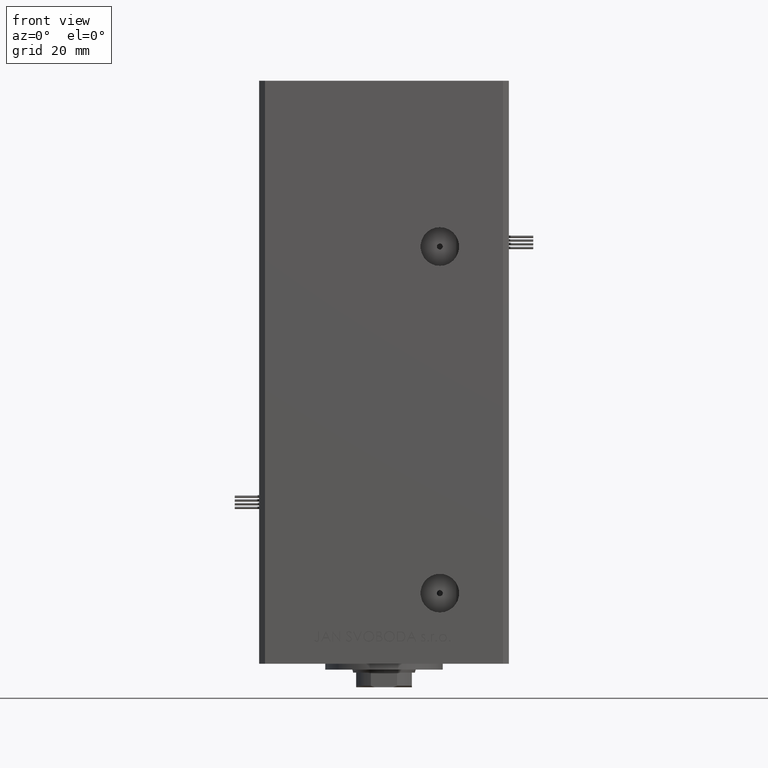
[diagram: clean part render]
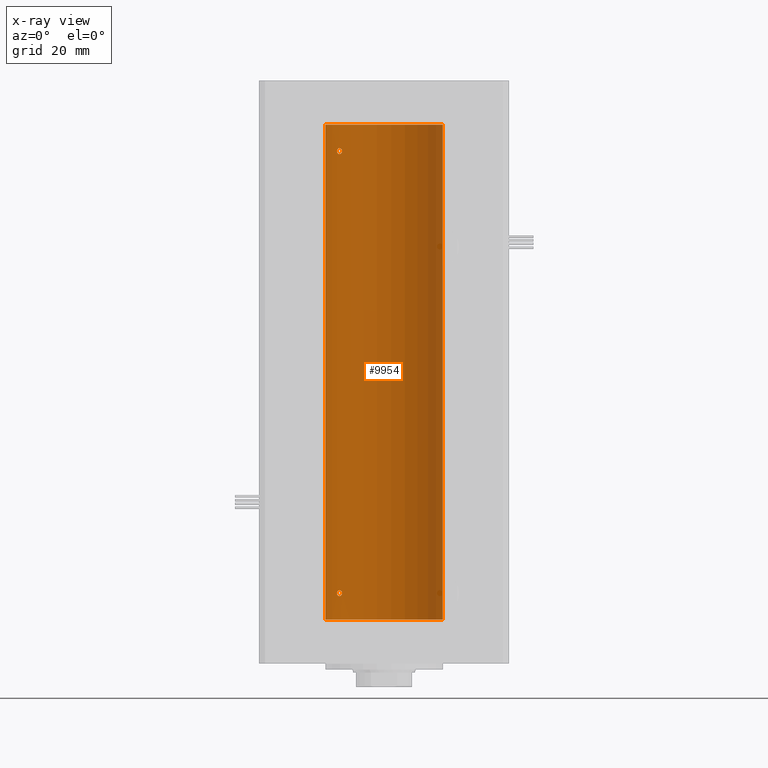
[diagram: x-ray — body ghosted, one internal face saturated and labeled with its STEP entity id]
A machine part, front view, then the same camera in x-ray: the body is ghosted and one INTERNAL B-rep face — a face not visible from any outside direction — is saturated and labeled: STEP entity #9954.
In plain terms, the highlighted cylindrical surface (partial cylindrical patch) has radius 20 mm, axis along (-0, -0, -1).
Its self-contained STEP definition (entity closure, byte-faithful):
#86 = CARTESIAN_POINT ( 'NONE',  ( -14.43642497935765512, 13.84184969151371902, 158.9420533359229353 ) ) ;
#486 = ORIENTED_EDGE ( 'NONE', *, *, #17940, .F. ) ;
#711 = CARTESIAN_POINT ( 'NONE',  ( 20.00000000000000000, 2.449293598294706513E-15, 0.000000000000000000 ) ) ;
#980 = DIRECTION ( 'NONE',  ( -0.000000000000000000, -0.000000000000000000, -1.000000000000000000 ) ) ;
#1031 = CARTESIAN_POINT ( 'NONE',  ( -15.37869370082499287, 12.78737709343838880, 160.4843784334833003 ) ) ;
#1034 = DIRECTION ( 'NONE',  ( 1.000000000000000000, 0.000000000000000000, 0.000000000000000000 ) ) ;
#1082 = B_SPLINE_CURVE_WITH_KNOTS ( 'NONE', 3,
 ( #45273, #12504, #28768, #8519, #24769, #25028, #38584, #33535, #9031, #49526, #25565, #25822, #1031, #18081, #21300, #50053, #29540, #26086, #21557, #46064 ),
 .UNSPECIFIED., .F., .F.,
 ( 4, 2, 2, 2, 2, 2, 2, 2, 2, 4 ),
 ( 0.003644921977557289642, 0.004100339128177102332, 0.004328047703487008027, 0.004555756278796913722, 0.005011173429416777153, 0.005466590580036640584, 0.005922007730656504015, 0.006377424881276367447, 0.006832842031896230010, 0.007288259182516093442 ),
 .UNSPECIFIED. ) ;
#1751 = VERTEX_POINT ( 'NONE', #2927 ) ;
#1999 = EDGE_CURVE ( 'NONE', #51207, #1751, #34315, .T. ) ;
#2090 = CARTESIAN_POINT ( 'NONE',  ( 0.000000000000000000, 0.000000000000000000, 168.5000000000000000 ) ) ;
#2643 = CARTESIAN_POINT ( 'NONE',  ( -14.28285685708539177, 14.00000000000031442, 8.999999999999852562 ) ) ;
#2694 = CARTESIAN_POINT ( 'NONE',  ( -14.31871019372463572, 13.96358505023714969, 8.697478539577891965 ) ) ;
#2722 = VERTEX_POINT ( 'NONE', #28767 ) ;
#2927 = CARTESIAN_POINT ( 'NONE',  ( -20.00000000000000000, 0.000000000000000000, 0.000000000000000000 ) ) ;
#3141 = CARTESIAN_POINT ( 'NONE',  ( -16.00000000000000711, 11.99999999999999112, 9.000000000000001776 ) ) ;
#3228 = CARTESIAN_POINT ( 'NONE',  ( -15.37869471769013430, 12.79018928545118072, 7.995165913711802297 ) ) ;
#3665 = CARTESIAN_POINT ( 'NONE',  ( -15.28000793038420468, 12.90520882930643687, 10.00215022853123159 ) ) ;
#3828 = CARTESIAN_POINT ( 'NONE',  ( -14.31871019372461618, 13.96358505023716567, 159.1974785395779293 ) ) ;
#4033 = CARTESIAN_POINT ( 'NONE',  ( -14.28285685708539177, 14.00000000000031442, 8.999999999999852562 ) ) ;
#4134 = EDGE_CURVE ( 'NONE', #2722, #36157, #48498, .T. ) ;
#6624 = CYLINDRICAL_SURFACE ( 'NONE', #23786, 20.00000000000000000 ) ;
#6690 = CARTESIAN_POINT ( 'NONE',  ( -14.98166541227930360, 13.25033217142394726, 8.024769614914273319 ) ) ;
#7047 = EDGE_LOOP ( 'NONE', ( #48718, #22274, #17550, #43979 ) ) ;
#7662 = CARTESIAN_POINT ( 'NONE',  ( -16.00000000000001066, 11.99999999999999467, 9.154240719993492092 ) ) ;
#8014 = CARTESIAN_POINT ( 'NONE',  ( -14.56006338825496016, 13.71162570780883705, 9.705357955363311362 ) ) ;
#8519 = CARTESIAN_POINT ( 'NONE',  ( -14.40763032799401877, 13.87162499441318886, 159.9952174752552878 ) ) ;
#9031 = CARTESIAN_POINT ( 'NONE',  ( -14.78630942130979697, 13.46798002156743301, 160.3914152795839811 ) ) ;
#9312 = DIRECTION ( 'NONE',  ( -0.000000000000000000, 0.000000000000000000, 1.000000000000000000 ) ) ;
#9809 = DIRECTION ( 'NONE',  ( -0.000000000000000000, -0.000000000000000000, -1.000000000000000000 ) ) ;
#9954 = ADVANCED_FACE ( 'NONE', ( #50585, #14096, #46605 ), #6624, .F. ) ;
#10812 = VECTOR ( 'NONE', #980, 1000.000000000000000 ) ;
#11633 = CIRCLE ( 'NONE', #32042, 20.00000000000000000 ) ;
#11661 = CARTESIAN_POINT ( 'NONE',  ( -15.08229700616152513, 13.13572892147764648, 9.997430752714780766 ) ) ;
#11905 = B_SPLINE_CURVE_WITH_KNOTS ( 'NONE', 3,
 ( #36600, #48588, #20353, #12084, #40331, #24871, #28339, #20610, #29122, #20088, #24340, #41130, #86, #3828, #37115, #16348 ),
 .UNSPECIFIED., .F., .F.,
 ( 4, 2, 2, 2, 2, 2, 2, 4 ),
 ( 0.000000000000000000, 0.0004556152471946793114, 0.0009112304943893586228, 0.001822460988778669107, 0.002278076235973324620, 0.002733691483167979483, 0.003189306730362634346, 0.003644921977557289642 ),
 .UNSPECIFIED. ) ;
#12022 = CARTESIAN_POINT ( 'NONE',  ( -14.28285685708538111, 14.00000000000032685, 159.4999999999998579 ) ) ;
#12084 = CARTESIAN_POINT ( 'NONE',  ( -15.87710824431565904, 12.16238752415382507, 158.9349218073222403 ) ) ;
#12145 = CARTESIAN_POINT ( 'NONE',  ( -20.00000000000000000, 0.000000000000000000, 168.5000000000000000 ) ) ;
#12504 = CARTESIAN_POINT ( 'NONE',  ( -14.28285685708573105, 14.00000000000002487, 159.6525126096658767 ) ) ;
#13007 = B_SPLINE_CURVE_WITH_KNOTS ( 'NONE', 3,
 ( #50921, #47975, #31462, #43205, #47710, #43726, #3228, #27217, #6690, #43470, #39197, #43992, #35722, #2694, #35180, #18949 ),
 .UNSPECIFIED., .F., .F.,
 ( 4, 2, 2, 2, 2, 2, 2, 4 ),
 ( 1.734723475976807094E-18, 0.0004556152471946627231, 0.0009112304943893237115, 0.001822460988778648290, 0.002278076235973310742, 0.002733691483167973411, 0.003189306730362636080, 0.003644921977557298749 ),
 .UNSPECIFIED. ) ;
#13283 = VECTOR ( 'NONE', #9809, 1000.000000000000000 ) ;
#14096 = FACE_BOUND ( 'NONE', #41762, .T. ) ;
#16348 = CARTESIAN_POINT ( 'NONE',  ( -14.28285685708538111, 14.00000000000032685, 159.4999999999998579 ) ) ;
#16810 = CARTESIAN_POINT ( 'NONE',  ( -14.40763032799402055, 13.87162499441318531, 9.495217475255241624 ) ) ;
#17550 = ORIENTED_EDGE ( 'NONE', *, *, #1999, .T. ) ;
#17940 = EDGE_CURVE ( 'NONE', #50271, #38722, #11905, .T. ) ;
#18081 = CARTESIAN_POINT ( 'NONE',  ( -15.56338254739985949, 12.56194079578774847, 160.4068150496692908 ) ) ;
#18254 = EDGE_CURVE ( 'NONE', #51150, #26866, #20112, .T. ) ;
#18949 = CARTESIAN_POINT ( 'NONE',  ( -14.28285685708539177, 14.00000000000031442, 8.999999999999852562 ) ) ;
#19270 = EDGE_CURVE ( 'NONE', #26866, #51150, #13007, .T. ) ;
#19664 = CARTESIAN_POINT ( 'NONE',  ( -15.80861854366321495, 12.25167421322530714, 9.676052991901700651 ) ) ;
#20088 = CARTESIAN_POINT ( 'NONE',  ( -14.78531327857342781, 13.46907986586309747, 158.6090990069114923 ) ) ;
#20112 = B_SPLINE_CURVE_WITH_KNOTS ( 'NONE', 3,
 ( #4033, #41063, #37048, #16810, #36274, #32264, #8014, #28279, #44523, #52406, #11661, #3665, #47363, #43385, #47091, #19664, #31641, #35363, #7662, #3141 ),
 .UNSPECIFIED., .F., .F.,
 ( 4, 2, 2, 2, 2, 2, 2, 2, 2, 4 ),
 ( 0.003644921977557298749, 0.004100339128177154374, 0.004328047703487082620, 0.004555756278797009999, 0.005011173429416865624, 0.005466590580036722116, 0.005922007730656577741, 0.006377424881276433366, 0.006832842031896288991, 0.007288259182516144616 ),
 .UNSPECIFIED. ) ;
#20353 = CARTESIAN_POINT ( 'NONE',  ( -15.97265980134107366, 12.03662641108512332, 159.1953373148639059 ) ) ;
#20610 = CARTESIAN_POINT ( 'NONE',  ( -15.08054978948642955, 13.13774395934156658, 158.5027765441529937 ) ) ;
#21300 = CARTESIAN_POINT ( 'NONE',  ( -15.65267653428112382, 12.45028749062557161, 160.3454911519634720 ) ) ;
#21557 = CARTESIAN_POINT ( 'NONE',  ( -15.99999999999999645, 12.00000000000001421, 159.6542407199935667 ) ) ;
#21829 = CARTESIAN_POINT ( 'NONE',  ( -16.00000000000000711, 11.99999999999999112, 9.000000000000001776 ) ) ;
#22274 = ORIENTED_EDGE ( 'NONE', *, *, #26755, .T. ) ;
#23786 = AXIS2_PLACEMENT_3D ( 'NONE', #2090, #51110, #47378 ) ;
#24340 = CARTESIAN_POINT ( 'NONE',  ( -14.69070843596622744, 13.57200975233015683, 158.6702647380768099 ) ) ;
#24769 = CARTESIAN_POINT ( 'NONE',  ( -14.44276720520014123, 13.83508275448404135, 160.0540486626502741 ) ) ;
#24871 = CARTESIAN_POINT ( 'NONE',  ( -15.57359523075762198, 12.55100654799543314, 158.5686142754107379 ) ) ;
#25028 = CARTESIAN_POINT ( 'NONE',  ( -14.51882058315760027, 13.75524947942078136, 160.1587346592185668 ) ) ;
#25565 = CARTESIAN_POINT ( 'NONE',  ( -15.08229700616151625, 13.13572892147764470, 160.4974307527147630 ) ) ;
#25822 = CARTESIAN_POINT ( 'NONE',  ( -15.28000793038419403, 12.90520882930644042, 160.5021502285312351 ) ) ;
#26086 = CARTESIAN_POINT ( 'NONE',  ( -15.97258576326347779, 12.03672672663915044, 159.8051374092137564 ) ) ;
#26755 = EDGE_CURVE ( 'NONE', #2722, #51207, #11633, .T. ) ;
#26866 = VERTEX_POINT ( 'NONE', #21829 ) ;
#27217 = CARTESIAN_POINT ( 'NONE',  ( -15.08054978948645264, 13.13774395934155059, 8.002776544152997218 ) ) ;
#28279 = CARTESIAN_POINT ( 'NONE',  ( -14.69171503997127992, 13.57092520311231176, 9.830547039779304441 ) ) ;
#28339 = CARTESIAN_POINT ( 'NONE',  ( -15.37869471769012009, 12.79018928545119849, 158.4951659137117588 ) ) ;
#28767 = CARTESIAN_POINT ( 'NONE',  ( 20.00000000000000000, 2.449293598294706513E-15, 168.5000000000000000 ) ) ;
#28768 = CARTESIAN_POINT ( 'NONE',  ( -14.31936354392034971, 13.96291496472316140, 159.8044284570273703 ) ) ;
#29122 = CARTESIAN_POINT ( 'NONE',  ( -14.98166541227928583, 13.25033217142395792, 158.5247696149142485 ) ) ;
#29540 = CARTESIAN_POINT ( 'NONE',  ( -15.87665094074984573, 12.16298652314402240, 160.0660500660139860 ) ) ;
#31462 = CARTESIAN_POINT ( 'NONE',  ( -15.97265980134108787, 12.03662641108510556, 8.695337314863897049 ) ) ;
#31641 = CARTESIAN_POINT ( 'NONE',  ( -15.87665094074984928, 12.16298652314401707, 9.566050066014016195 ) ) ;
#32042 = AXIS2_PLACEMENT_3D ( 'NONE', #37541, #32294, #1034 ) ;
#32264 = CARTESIAN_POINT ( 'NONE',  ( -14.51882058315761270, 13.75524947942076892, 9.658734659218604079 ) ) ;
#32294 = DIRECTION ( 'NONE',  ( -0.000000000000000000, 0.000000000000000000, 1.000000000000000000 ) ) ;
#32359 = EDGE_LOOP ( 'NONE', ( #486, #46233 ) ) ;
#33535 = CARTESIAN_POINT ( 'NONE',  ( -14.69171503997127459, 13.57092520311232065, 160.3305470397793044 ) ) ;
#33542 = CARTESIAN_POINT ( 'NONE',  ( 0.000000000000000000, 0.000000000000000000, 0.000000000000000000 ) ) ;
#34315 = LINE ( 'NONE', #39100, #13283 ) ;
#35180 = CARTESIAN_POINT ( 'NONE',  ( -14.28285685708577191, 13.99999999999997868, 8.847421050659347586 ) ) ;
#35363 = CARTESIAN_POINT ( 'NONE',  ( -15.97258576326347779, 12.03672672663913268, 9.305137409213726229 ) ) ;
#35722 = CARTESIAN_POINT ( 'NONE',  ( -14.43642497935767111, 13.84184969151370304, 8.442053335922924617 ) ) ;
#36157 = VERTEX_POINT ( 'NONE', #711 ) ;
#36274 = CARTESIAN_POINT ( 'NONE',  ( -14.44276720520015367, 13.83508275448402713, 9.554048662650275858 ) ) ;
#36600 = CARTESIAN_POINT ( 'NONE',  ( -15.99999999999999645, 12.00000000000000711, 159.5000000000000000 ) ) ;
#37048 = CARTESIAN_POINT ( 'NONE',  ( -14.31936354392036215, 13.96291496472314897, 9.304428457027322352 ) ) ;
#37115 = CARTESIAN_POINT ( 'NONE',  ( -14.28285685708575770, 14.00000000000000355, 159.3474210506593920 ) ) ;
#37541 = CARTESIAN_POINT ( 'NONE',  ( 0.000000000000000000, 0.000000000000000000, 168.5000000000000000 ) ) ;
#38015 = CARTESIAN_POINT ( 'NONE',  ( 20.00000000000000000, 2.449293598294706513E-15, 168.5000000000000000 ) ) ;
#38584 = CARTESIAN_POINT ( 'NONE',  ( -14.56006338825494950, 13.71162570780885304, 160.2053579553632972 ) ) ;
#38722 = VERTEX_POINT ( 'NONE', #12022 ) ;
#39100 = CARTESIAN_POINT ( 'NONE',  ( -20.00000000000000000, 0.000000000000000000, 168.5000000000000000 ) ) ;
#39197 = CARTESIAN_POINT ( 'NONE',  ( -14.69070843596624165, 13.57200975233013374, 8.170264738076779665 ) ) ;
#40331 = CARTESIAN_POINT ( 'NONE',  ( -15.80909732170550441, 12.25106527276996360, 158.8244517809014269 ) ) ;
#41063 = CARTESIAN_POINT ( 'NONE',  ( -14.28285685708574348, 14.00000000000002132, 9.152512609665839349 ) ) ;
#41130 = CARTESIAN_POINT ( 'NONE',  ( -14.51590294503183109, 13.75881262167379404, 158.8367812074224332 ) ) ;
#41762 = EDGE_LOOP ( 'NONE', ( #42553, #41804 ) ) ;
#41804 = ORIENTED_EDGE ( 'NONE', *, *, #18254, .F. ) ;
#42553 = ORIENTED_EDGE ( 'NONE', *, *, #19270, .F. ) ;
#43205 = CARTESIAN_POINT ( 'NONE',  ( -15.87710824431567325, 12.16238752415380553, 8.434921807322277587 ) ) ;
#43385 = CARTESIAN_POINT ( 'NONE',  ( -15.56338254739986127, 12.56194079578773959, 9.906815049669285500 ) ) ;
#43470 = CARTESIAN_POINT ( 'NONE',  ( -14.78531327857344202, 13.46907986586307970, 8.109099006911455021 ) ) ;
#43726 = CARTESIAN_POINT ( 'NONE',  ( -15.57359523075763796, 12.55100654799542070, 8.068614275410753933 ) ) ;
#43949 = AXIS2_PLACEMENT_3D ( 'NONE', #33542, #9312, #49788 ) ;
#43979 = ORIENTED_EDGE ( 'NONE', *, *, #49258, .F. ) ;
#43992 = CARTESIAN_POINT ( 'NONE',  ( -14.51590294503184886, 13.75881262167378161, 8.336781207422362172 ) ) ;
#44296 = EDGE_CURVE ( 'NONE', #38722, #50271, #1082, .T. ) ;
#44523 = CARTESIAN_POINT ( 'NONE',  ( -14.78630942130980408, 13.46798002156742768, 9.891415279583981146 ) ) ;
#45273 = CARTESIAN_POINT ( 'NONE',  ( -14.28285685708538111, 14.00000000000032685, 159.4999999999998579 ) ) ;
#46064 = CARTESIAN_POINT ( 'NONE',  ( -15.99999999999999645, 12.00000000000000711, 159.5000000000000000 ) ) ;
#46233 = ORIENTED_EDGE ( 'NONE', *, *, #44296, .F. ) ;
#46605 = FACE_BOUND ( 'NONE', #32359, .T. ) ;
#47091 = CARTESIAN_POINT ( 'NONE',  ( -15.65267653428114158, 12.45028749062555207, 9.845491151963431165 ) ) ;
#47363 = CARTESIAN_POINT ( 'NONE',  ( -15.37869370082499110, 12.78737709343837459, 9.984378433483312776 ) ) ;
#47378 = DIRECTION ( 'NONE',  ( -1.000000000000000000, 0.000000000000000000, 0.000000000000000000 ) ) ;
#47710 = CARTESIAN_POINT ( 'NONE',  ( -15.80909732170550797, 12.25106527276994228, 8.324451780901403808 ) ) ;
#47975 = CARTESIAN_POINT ( 'NONE',  ( -16.00000000000000711, 11.99999999999999112, 8.845692188641407938 ) ) ;
#48498 = LINE ( 'NONE', #38015, #10812 ) ;
#48588 = CARTESIAN_POINT ( 'NONE',  ( -15.99999999999999645, 12.00000000000001243, 159.3456921886414648 ) ) ;
#48718 = ORIENTED_EDGE ( 'NONE', *, *, #4134, .F. ) ;
#49226 = CARTESIAN_POINT ( 'NONE',  ( -15.99999999999999645, 12.00000000000000711, 159.5000000000000000 ) ) ;
#49258 = EDGE_CURVE ( 'NONE', #36157, #1751, #51602, .T. ) ;
#49526 = CARTESIAN_POINT ( 'NONE',  ( -14.98188199575990431, 13.25008090651448001, 160.4752364028577176 ) ) ;
#49788 = DIRECTION ( 'NONE',  ( 1.000000000000000000, 0.000000000000000000, 0.000000000000000000 ) ) ;
#50053 = CARTESIAN_POINT ( 'NONE',  ( -15.80861854366319363, 12.25167421322532491, 160.1760529919016847 ) ) ;
#50271 = VERTEX_POINT ( 'NONE', #49226 ) ;
#50585 = FACE_OUTER_BOUND ( 'NONE', #7047, .T. ) ;
#50921 = CARTESIAN_POINT ( 'NONE',  ( -16.00000000000000711, 11.99999999999999112, 9.000000000000001776 ) ) ;
#51110 = DIRECTION ( 'NONE',  ( -0.000000000000000000, -0.000000000000000000, -1.000000000000000000 ) ) ;
#51150 = VERTEX_POINT ( 'NONE', #2643 ) ;
#51207 = VERTEX_POINT ( 'NONE', #12145 ) ;
#51602 = CIRCLE ( 'NONE', #43949, 20.00000000000000000 ) ;
#52406 = CARTESIAN_POINT ( 'NONE',  ( -14.98188199575991675, 13.25008090651447112, 9.975236402857758478 ) ) ;